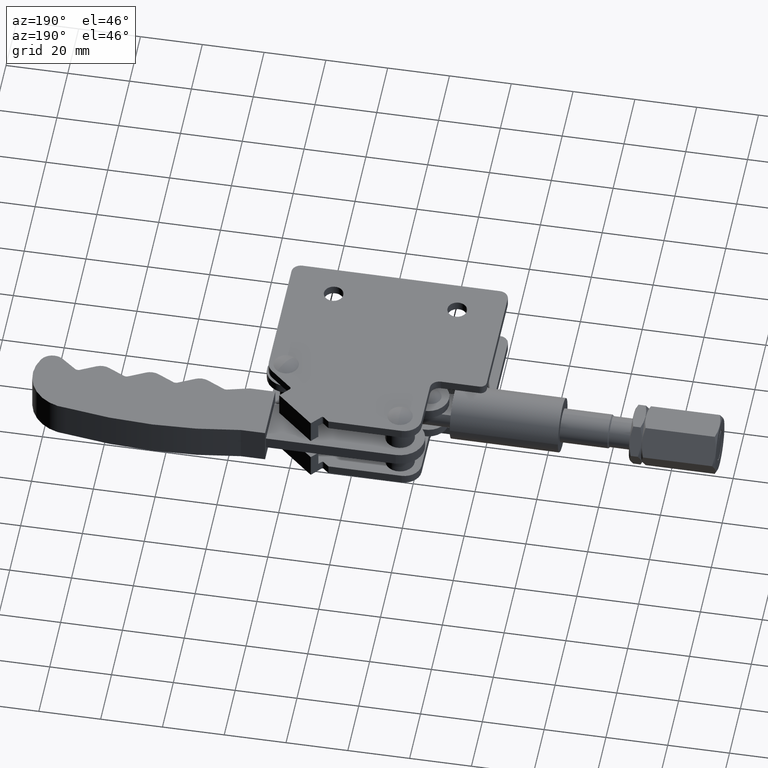
[diagram: clean part render]
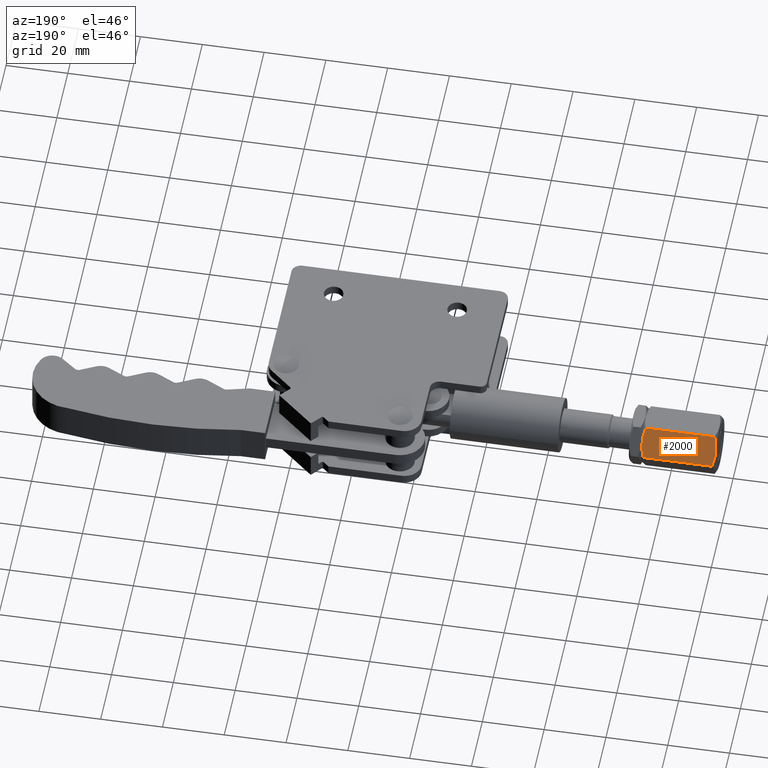
[diagram: same view with one face highlighted and labeled with its STEP entity id]
A machine part, auxiliary view. The second image highlights one B-rep face of the part: STEP entity #2000.
In plain terms, the highlighted planar face has unit normal (0, -0.866, -0.5).
Its self-contained STEP definition (entity closure, byte-faithful):
#32 = LINE ( 'NONE', #4962, #2189 ) ;
#124 = VERTEX_POINT ( 'NONE', #2271 ) ;
#224 = CARTESIAN_POINT ( 'NONE',  ( -52.05383302125837000, 29.06513970666924300, -7.873206338307833900 ) ) ;
#286 = CARTESIAN_POINT ( 'NONE',  ( -51.99636075661025100, 26.40747728811182100, -3.269999999999996900 ) ) ;
#316 = CARTESIAN_POINT ( 'NONE',  ( -75.92114323533869000, 29.27473369013240800, -8.236233766626789100 ) ) ;
#478 = B_SPLINE_CURVE_WITH_KNOTS ( 'NONE', 3,
 ( #7687, #885, #6607, #4081, #3661, #4094, #316, #7790, #3865, #2905, #2801, #4661 ),
 .UNSPECIFIED., .F., .F.,
 ( 4, 2, 2, 2, 2, 4 ),
 ( 2.380731281791404300E-007, 0.002478378544578713600, 0.004956519016029247700, 0.006195589251754515300, 0.007434659487479782800, 0.009912799958930313500 ),
 .UNSPECIFIED. ) ;
#570 = CARTESIAN_POINT ( 'NONE',  ( -52.58168206791444300, 30.91380624993211200, -11.07519071749185400 ) ) ;
#803 = ORIENTED_EDGE ( 'NONE', *, *, #3519, .F. ) ;
#878 = CARTESIAN_POINT ( 'NONE',  ( -52.05463026734931700, 28.43930233861964800, -6.789224219570736600 ) ) ;
#885 = CARTESIAN_POINT ( 'NONE',  ( -75.41075110481952500, 26.80812619403049300, -3.963944261048007300 ) ) ;
#939 = DIRECTION ( 'NONE',  ( 0.0000000000000000000, -0.8660254037844386000, -0.5000000000000003300 ) ) ;
#1162 = CARTESIAN_POINT ( 'NONE',  ( -52.81328516208405700, 31.31495457622365200, -11.77000000000001400 ) ) ;
#1403 = B_SPLINE_CURVE_WITH_KNOTS ( 'NONE', 3,
 ( #6125, #2844, #7854, #4624, #878, #224, #5899, #2842, #5799, #6406, #570, #2192 ),
 .UNSPECIFIED., .F., .F.,
 ( 4, 2, 2, 2, 2, 4 ),
 ( 2.380731279443147400E-007, 0.002478378544578536600, 0.004956519016029128900, 0.006195589251754424200, 0.007434659487479718600, 0.009912799958930313500 ),
 .UNSPECIFIED. ) ;
#1429 = DIRECTION ( 'NONE',  ( 0.0000000000000000000, 0.5000000000000002200, -0.8660254037844384900 ) ) ;
#1444 = VERTEX_POINT ( 'NONE', #1162 ) ;
#1493 = DIRECTION ( 'NONE',  ( -1.000000000000000000, 0.0000000000000000000, 0.0000000000000000000 ) ) ;
#2000 = ADVANCED_FACE ( 'NONE', ( #7377 ), #5757, .F. ) ;
#2046 = ORIENTED_EDGE ( 'NONE', *, *, #3852, .F. ) ;
#2160 = AXIS2_PLACEMENT_3D ( 'NONE', #7525, #939, #1429 ) ;
#2189 = VECTOR ( 'NONE', #6130, 1000.000000000000000 ) ;
#2192 = CARTESIAN_POINT ( 'NONE',  ( -52.81328516208405700, 31.31495457622365200, -11.77000000000001400 ) ) ;
#2271 = CARTESIAN_POINT ( 'NONE',  ( -52.81328516208405700, 26.40747728811182100, -3.269999999999996900 ) ) ;
#2374 = EDGE_CURVE ( 'NONE', #1444, #3480, #32, .T. ) ;
#2801 = CARTESIAN_POINT ( 'NONE',  ( -75.41103944530604500, 30.91380624993212600, -11.07519071749187300 ) ) ;
#2842 = CARTESIAN_POINT ( 'NONE',  ( -52.14077536141160600, 29.68933270750859400, -8.954340329490474200 ) ) ;
#2844 = CARTESIAN_POINT ( 'NONE',  ( -52.58197040840102700, 26.80812619403037200, -3.963944261047825300 ) ) ;
#2905 = CARTESIAN_POINT ( 'NONE',  ( -75.60215654700999700, 30.50930481758396000, -10.37457368493045000 ) ) ;
#2912 = CARTESIAN_POINT ( 'NONE',  ( -75.17943635113644500, 31.31495457622365200, -11.77000000000001400 ) ) ;
#3071 = ORIENTED_EDGE ( 'NONE', *, *, #2374, .T. ) ;
#3480 = VERTEX_POINT ( 'NONE', #2912 ) ;
#3519 = EDGE_CURVE ( 'NONE', #5622, #3480, #478, .T. ) ;
#3661 = CARTESIAN_POINT ( 'NONE',  ( -75.93809124587117800, 28.43930233861970400, -6.789224219570855600 ) ) ;
#3852 = EDGE_CURVE ( 'NONE', #124, #5622, #6077, .T. ) ;
#3865 = CARTESIAN_POINT ( 'NONE',  ( -75.80056454574661000, 29.89524221953080000, -9.310986066074651300 ) ) ;
#4081 = CARTESIAN_POINT ( 'NONE',  ( -75.86550205455724000, 28.02725297005639900, -6.075533777992532700 ) ) ;
#4094 = CARTESIAN_POINT ( 'NONE',  ( -75.93888849196211800, 29.06513970666929900, -7.873206338307928900 ) ) ;
#4246 = VECTOR ( 'NONE', #1493, 1000.000000000000000 ) ;
#4317 = CARTESIAN_POINT ( 'NONE',  ( -75.17943635113670100, 26.40747728811221900, -3.269999999999996900 ) ) ;
#4624 = CARTESIAN_POINT ( 'NONE',  ( -52.12721945866325500, 28.02725297005631700, -6.075533777992395900 ) ) ;
#4661 = CARTESIAN_POINT ( 'NONE',  ( -75.17943635113644500, 31.31495457622365200, -11.77000000000001400 ) ) ;
#4805 = EDGE_LOOP ( 'NONE', ( #2046, #5219, #3071, #803 ) ) ;
#4962 = CARTESIAN_POINT ( 'NONE',  ( -51.99636075661025100, 31.31495457622365200, -11.77000000000001400 ) ) ;
#5219 = ORIENTED_EDGE ( 'NONE', *, *, #6212, .T. ) ;
#5622 = VERTEX_POINT ( 'NONE', #4317 ) ;
#5757 = PLANE ( 'NONE',  #2160 ) ;
#5799 = CARTESIAN_POINT ( 'NONE',  ( -52.19215696747388500, 29.89524221953076800, -9.310986066074592700 ) ) ;
#5899 = CARTESIAN_POINT ( 'NONE',  ( -52.07157827788181200, 29.27473369013235800, -8.236233766626702000 ) ) ;
#6077 = LINE ( 'NONE', #286, #4246 ) ;
#6125 = CARTESIAN_POINT ( 'NONE',  ( -52.81328516208405700, 26.40747728811182100, -3.269999999999996900 ) ) ;
#6130 = DIRECTION ( 'NONE',  ( -1.000000000000000000, 0.0000000000000000000, 0.0000000000000000000 ) ) ;
#6212 = EDGE_CURVE ( 'NONE', #124, #1444, #1403, .T. ) ;
#6406 = CARTESIAN_POINT ( 'NONE',  ( -52.39056496621049100, 30.50930481758393100, -10.37457368493041300 ) ) ;
#6607 = CARTESIAN_POINT ( 'NONE',  ( -75.60139639814997300, 27.21169618371532900, -4.662947987592207100 ) ) ;
#7377 = FACE_OUTER_BOUND ( 'NONE', #4805, .T. ) ;
#7525 = CARTESIAN_POINT ( 'NONE',  ( -51.99636075661025100, 31.31495457622365200, -11.77000000000001400 ) ) ;
#7687 = CARTESIAN_POINT ( 'NONE',  ( -75.17943635113670100, 26.40747728811221900, -3.269999999999996900 ) ) ;
#7790 = CARTESIAN_POINT ( 'NONE',  ( -75.85194615180890300, 29.68933270750864000, -8.954340329490539900 ) ) ;
#7854 = CARTESIAN_POINT ( 'NONE',  ( -52.39132511507058600, 27.21169618371523700, -4.662947987592039200 ) ) ;